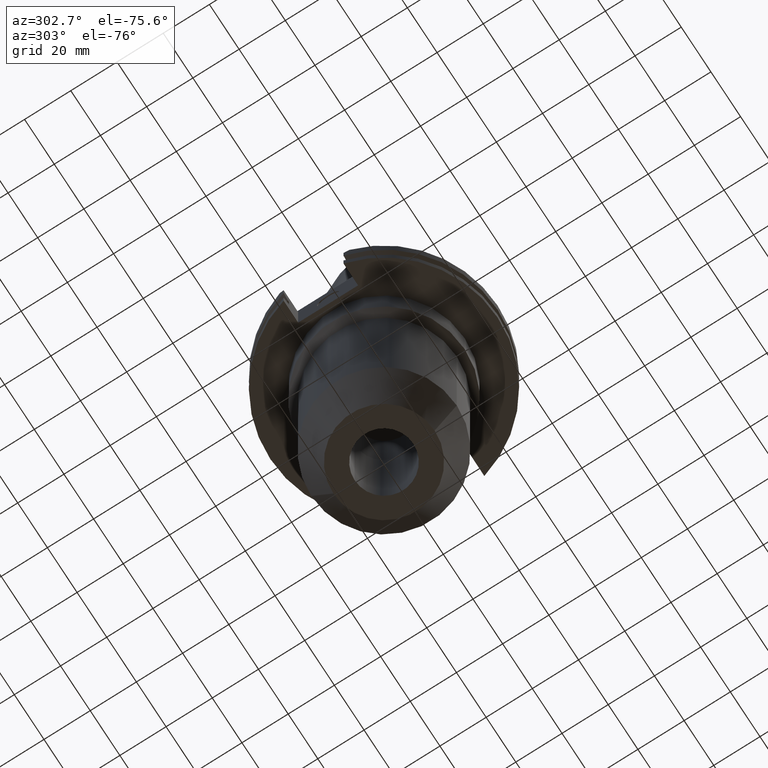
[diagram: clean part render]
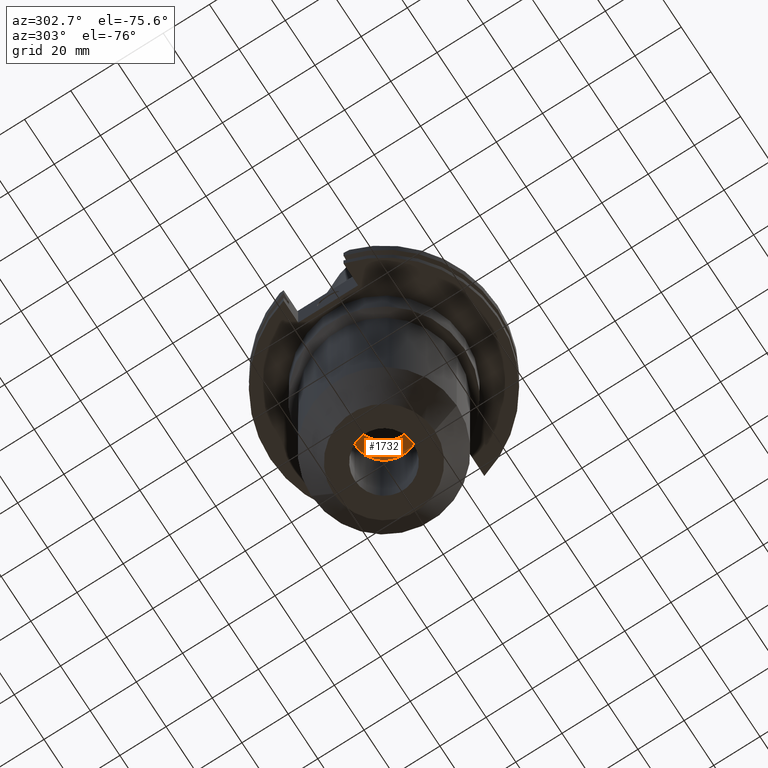
[diagram: same view with one face highlighted and labeled with its STEP entity id]
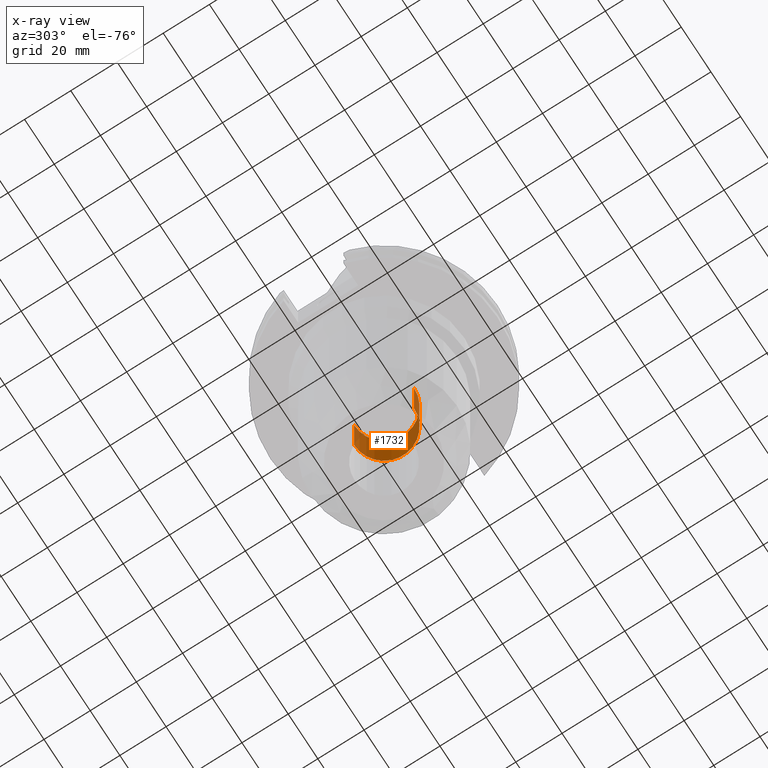
[diagram: x-ray of the same camera — body ghosted, the highlighted face saturated]
A machine part, auxiliary view. The second image highlights one B-rep face of the part: STEP entity #1732.
The next image is the same camera in x-ray: the body ghosted, the highlighted face saturated — about 27% of this face is hidden behind the body in this view.
In plain terms, the highlighted cylindrical surface (edge-blend (fillet) strip) has radius 12.95 mm, axis along (0, 0, -1).
Its self-contained STEP definition (entity closure, byte-faithful):
#262=CARTESIAN_POINT('',(0.E0,2.608865076224E-14,-4.58E1));
#263=DIRECTION('',(0.E0,0.E0,1.E0));
#264=DIRECTION('',(0.E0,-1.E0,0.E0));
#265=AXIS2_PLACEMENT_3D('',#262,#263,#264);
#294=DIRECTION('',(0.E0,0.E0,1.E0));
#295=VECTOR('',#294,2.92E1);
#296=CARTESIAN_POINT('',(0.E0,1.295E1,-7.5E1));
#297=LINE('',#296,#295);
#301=DIRECTION('',(0.E0,0.E0,1.E0));
#302=VECTOR('',#301,2.92E1);
#303=CARTESIAN_POINT('',(0.E0,-1.295E1,-7.5E1));
#304=LINE('',#303,#302);
#316=CARTESIAN_POINT('',(0.E0,2.608865076224E-14,-7.5E1));
#317=DIRECTION('',(0.E0,0.E0,-1.E0));
#318=DIRECTION('',(0.E0,1.E0,0.E0));
#319=AXIS2_PLACEMENT_3D('',#316,#317,#318);
#1302=CARTESIAN_POINT('',(0.E0,-1.295E1,-4.58E1));
#1303=CARTESIAN_POINT('',(0.E0,1.295E1,-4.58E1));
#1304=VERTEX_POINT('',#1302);
#1305=VERTEX_POINT('',#1303);
#1306=CARTESIAN_POINT('',(0.E0,1.295E1,-7.5E1));
#1307=VERTEX_POINT('',#1306);
#1308=CARTESIAN_POINT('',(0.E0,-1.295E1,-7.5E1));
#1309=VERTEX_POINT('',#1308);
#1718=CARTESIAN_POINT('',(0.E0,2.608865076224E-14,1.1303E2));
#1719=DIRECTION('',(0.E0,0.E0,-1.E0));
#1720=DIRECTION('',(0.E0,-1.E0,0.E0));
#1721=AXIS2_PLACEMENT_3D('',#1718,#1719,#1720);
#1722=CYLINDRICAL_SURFACE('',#1721,1.295E1);
#1724=ORIENTED_EDGE('',*,*,#1723,.T.);
#1725=ORIENTED_EDGE('',*,*,#1707,.F.);
#1727=ORIENTED_EDGE('',*,*,#1726,.F.);
#1729=ORIENTED_EDGE('',*,*,#1728,.F.);
#1730=EDGE_LOOP('',(#1724,#1725,#1727,#1729));
#1731=FACE_OUTER_BOUND('',#1730,.F.);
#266=CIRCLE('',#265,1.295E1);
#320=CIRCLE('',#319,1.295E1);
#1707=EDGE_CURVE('',#1304,#1305,#266,.T.);
#1723=EDGE_CURVE('',#1307,#1305,#297,.T.);
#1726=EDGE_CURVE('',#1309,#1304,#304,.T.);
#1728=EDGE_CURVE('',#1307,#1309,#320,.T.);
#1732=ADVANCED_FACE('',(#1731),#1722,.F.);